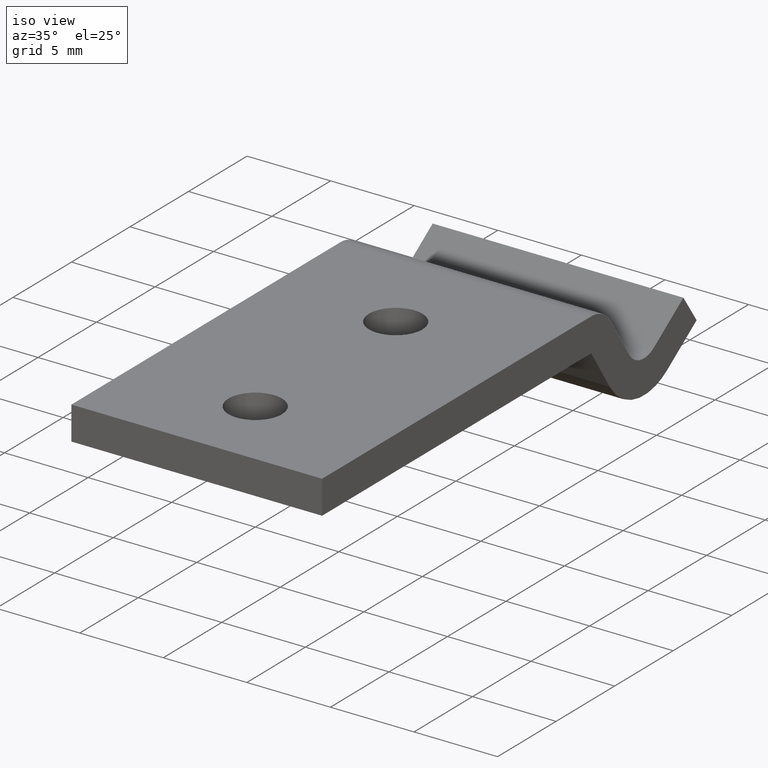
[diagram: clean part render]
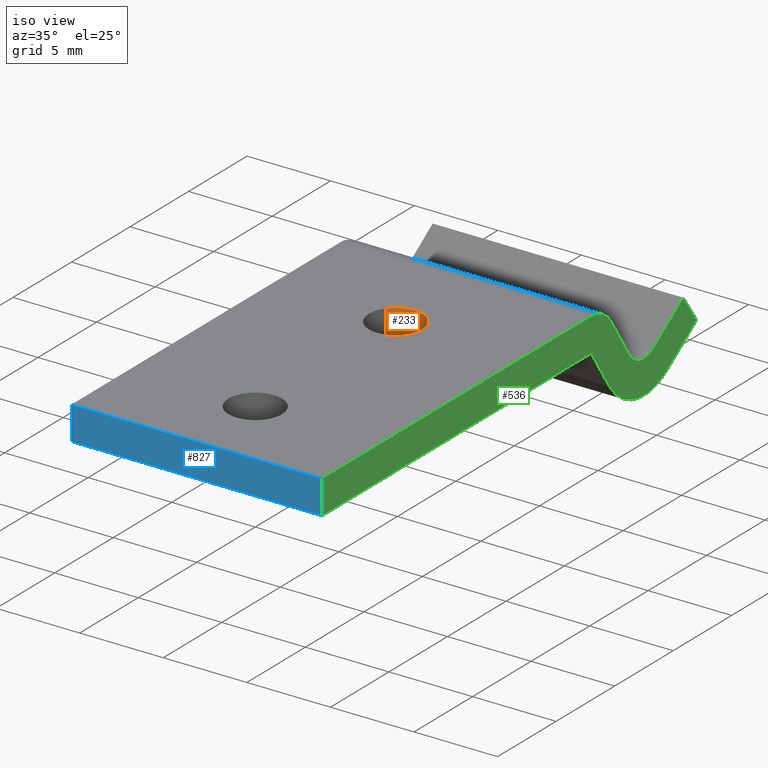
[diagram: same view with three faces highlighted in distinct colors, each labeled with its STEP entity id]
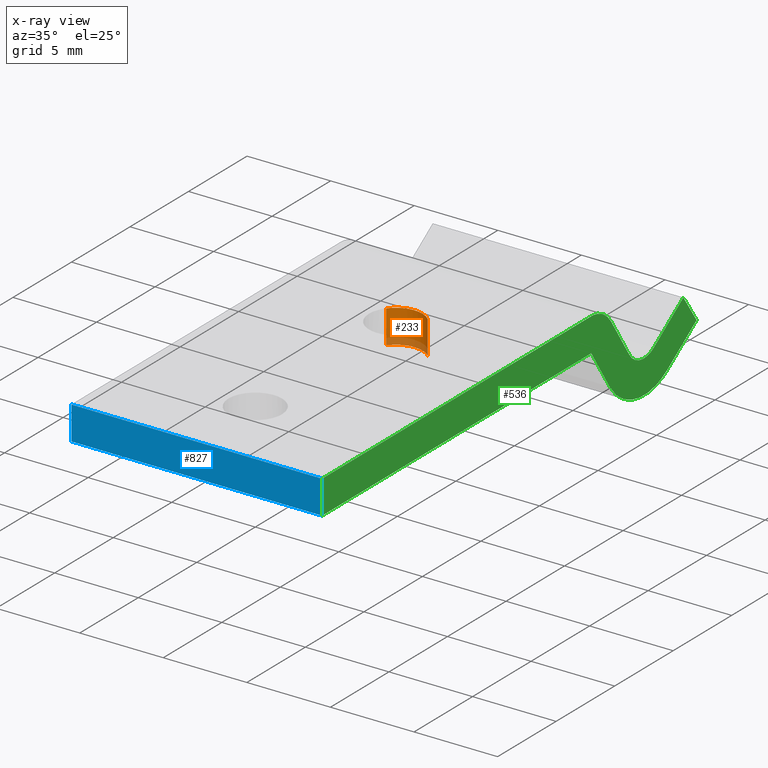
[diagram: x-ray of the same camera — body ghosted, the three highlighted faces saturated]
A machine part, iso view with three faces highlighted in distinct colors.
The next image is the same camera in x-ray (body ghosted, the three faces saturated) — at least one of them is partly hidden behind the body in this view.
Their STEP definitions:

[orange] entity #233 — the highlighted face is a freeform B-spline surface patch.
#66=CARTESIAN_POINT('',(-1.263056931649046,17.982184904898428,7.661973E-014));
#67=VERTEX_POINT('',#66);
#100=CARTESIAN_POINT('',(1.121454714115848,18.141200825528671,1.040834E-016));
#101=VERTEX_POINT('',#100);
#115=CARTESIAN_POINT('',(1.121454701941932,18.141200837491940,-1.999999999999998));
#116=VERTEX_POINT('',#115);
#117=CARTESIAN_POINT('',(1.121454701941932,18.141200837491940,-1.999999999999998));
#118=CARTESIAN_POINT('',(1.121454714115848,18.141200825528671,1.040834E-016));
#119=QUASI_UNIFORM_CURVE('',1,(#117,#118),.UNSPECIFIED.,.F.,.U.);
#120=EDGE_CURVE('',#116,#101,#119,.T.);
#139=CARTESIAN_POINT('',(-1.263056544785496,17.982185402392709,-2.0));
#140=VERTEX_POINT('',#139);
#156=CARTESIAN_POINT('',(-1.263056544785496,17.982185402392709,-2.0));
#157=CARTESIAN_POINT('',(-1.263056931649046,17.982184904898428,7.661973E-014));
#158=QUASI_UNIFORM_CURVE('',1,(#156,#157),.UNSPECIFIED.,.F.,.U.);
#159=EDGE_CURVE('',#140,#67,#158,.T.);
#164=CARTESIAN_POINT('',(1.130142307215026,18.132663551567063,-2.049999999999999));
#165=CARTESIAN_POINT('',(1.125805424281291,18.136925394556503,-2.049999999999999));
#166=CARTESIAN_POINT('',(-0.019745895766931,19.262655541526449,-2.050000000000001));
#167=CARTESIAN_POINT('',(-1.141200718646692,18.121454822879759,-2.050000000000000));
#168=CARTESIAN_POINT('',(-1.206161919057814,18.055349825085063,-2.050000000000000));
#169=CARTESIAN_POINT('',(-1.266981190131970,17.977138450992641,-2.050000000000000));
#170=CARTESIAN_POINT('',(-1.270917439241550,17.972076577573358,-2.049999999999999));
#171=CARTESIAN_POINT('',(1.130142307215026,18.132663551567063,0.051250000000000));
#172=CARTESIAN_POINT('',(1.125805424281291,18.136925394556503,0.051250000000000));
#173=CARTESIAN_POINT('',(-0.019745895766931,19.262655541526449,0.051250000000000));
#174=CARTESIAN_POINT('',(-1.141200718646692,18.121454822879759,0.051250000000000));
#175=CARTESIAN_POINT('',(-1.206161919057814,18.055349825085063,0.051250000000000));
#176=CARTESIAN_POINT('',(-1.266981190131970,17.977138450992641,0.051250000000000));
#177=CARTESIAN_POINT('',(-1.270917439241550,17.972076577573358,0.051250000000000));
#185=(BOUNDED_SURFACE()B_SPLINE_SURFACE(2,1,((#164,#171),(#165,#172),(#166,#173),(#167,#174),(#168,#175),(#169,#176),(#170,#177)),.UNSPECIFIED.,.F.,.F.,.U.)B_SPLINE_SURFACE_WITH_KNOTS((3,1,2,1,3),(2,2),(0.0,0.014315050516549,2.665281849704356,2.877359193639381,2.891676356386252),(0.0,2.101250000000000),.UNSPECIFIED.)GEOMETRIC_REPRESENTATION_ITEM()RATIONAL_B_SPLINE_SURFACE(((1.003163209154150,1.003163209154150),(1.001581604577075,1.001581604577075),(0.707106781186548,0.707106781186548),(1.0,1.0),(0.976568542494924,0.976568542494924),(0.955557374314541,0.955557374314541),(0.954228630438423,0.954228630438423)))REPRESENTATION_ITEM('')SURFACE());
#186=CARTESIAN_POINT('',(1.121454714115848,18.141200825528667,1.040834E-016));
#187=CARTESIAN_POINT('',(0.654577104271281,18.600000000000005,0.0));
#188=CARTESIAN_POINT('',(-1.223941E-015,18.600000000000001,0.0));
#189=CARTESIAN_POINT('',(-0.782628341915235,18.599999999999998,0.0));
#190=CARTESIAN_POINT('',(-1.263056931649046,17.982184904898428,7.661973E-014));
#198=(BOUNDED_CURVE()B_SPLINE_CURVE(2,(#186,#187,#188,#189,#190),.UNSPECIFIED.,.F.,.U.)B_SPLINE_CURVE_WITH_KNOTS((3,2,3),(0.626316786352934,0.750000000000000,0.893802338418216),.UNSPECIFIED.)CURVE()GEOMETRIC_REPRESENTATION_ITEM()RATIONAL_B_SPLINE_CURVE((0.853569641961433,0.855096101766876,1.0,0.831525080911149,0.856866860460671))REPRESENTATION_ITEM(''));
#199=EDGE_CURVE('',#101,#67,#198,.T.);
#200=ORIENTED_EDGE('',*,*,#199,.T.);
#201=ORIENTED_EDGE('',*,*,#159,.F.);
#202=CARTESIAN_POINT('',(-1.223941E-015,18.600000000000001,-2.0));
#203=VERTEX_POINT('',#202);
#204=CARTESIAN_POINT('',(-1.263056544785496,17.982185402392712,-2.000000000000000));
#205=CARTESIAN_POINT('',(-0.782627951418396,18.599999999999994,-2.0));
#206=CARTESIAN_POINT('',(-1.223941E-015,18.600000000000001,-2.0));
#214=(BOUNDED_CURVE()B_SPLINE_CURVE(2,(#204,#205,#206),.UNSPECIFIED.,.F.,.U.)B_SPLINE_CURVE_WITH_KNOTS((3,3),(0.856197721244537,1.0),.UNSPECIFIED.)CURVE()GEOMETRIC_REPRESENTATION_ITEM()RATIONAL_B_SPLINE_CURVE((0.856866839432390,0.831525150810412,1.0))REPRESENTATION_ITEM(''));
#215=EDGE_CURVE('',#140,#203,#214,.T.);
#216=ORIENTED_EDGE('',*,*,#215,.T.);
#217=CARTESIAN_POINT('',(-1.223941E-015,18.600000000000001,-2.0));
#218=CARTESIAN_POINT('',(0.654577084346330,18.599999999999998,-2.000000000000000));
#219=CARTESIAN_POINT('',(1.121454701941932,18.141200837491940,-1.999999999999997));
#227=(BOUNDED_CURVE()B_SPLINE_CURVE(2,(#217,#218,#219),.UNSPECIFIED.,.F.,.U.)B_SPLINE_CURVE_WITH_KNOTS((3,3),(0.0,0.123683210427761),.UNSPECIFIED.)CURVE()GEOMETRIC_REPRESENTATION_ITEM()RATIONAL_B_SPLINE_CURVE((1.0,0.855096105538526,0.853569642040897))REPRESENTATION_ITEM(''));
#228=EDGE_CURVE('',#203,#116,#227,.T.);
#229=ORIENTED_EDGE('',*,*,#228,.T.);
#230=ORIENTED_EDGE('',*,*,#120,.T.);
#231=EDGE_LOOP('',(#200,#201,#216,#229,#230));
#232=FACE_OUTER_BOUND('',#231,.T.);
#233=ADVANCED_FACE('',(#232),#185,.F.);

[blue] entity #827 — the highlighted face is a freeform B-spline surface patch.
#446=CARTESIAN_POINT('',(7.500000000000000,0.0,0.0));
#447=VERTEX_POINT('',#446);
#453=CARTESIAN_POINT('',(7.500000000000000,0.0,-2.0));
#454=VERTEX_POINT('',#453);
#455=CARTESIAN_POINT('',(7.500000000000000,0.0,0.0));
#456=CARTESIAN_POINT('',(7.500000000000000,0.0,-2.0));
#457=QUASI_UNIFORM_CURVE('',1,(#455,#456),.UNSPECIFIED.,.F.,.U.);
#458=EDGE_CURVE('',#447,#454,#457,.T.);
#628=CARTESIAN_POINT('',(-7.500000000000000,0.0,-2.0));
#629=VERTEX_POINT('',#628);
#635=CARTESIAN_POINT('',(-7.500000000000000,0.0,0.0));
#636=VERTEX_POINT('',#635);
#637=CARTESIAN_POINT('',(-7.500000000000000,0.0,0.0));
#638=CARTESIAN_POINT('',(-7.500000000000000,0.0,-2.0));
#639=QUASI_UNIFORM_CURVE('',1,(#637,#638),.UNSPECIFIED.,.F.,.U.);
#640=EDGE_CURVE('',#636,#629,#639,.T.);
#790=CARTESIAN_POINT('',(-7.500000000000000,0.0,-2.0));
#791=CARTESIAN_POINT('',(7.500000000000000,0.0,-2.0));
#792=QUASI_UNIFORM_CURVE('',1,(#790,#791),.UNSPECIFIED.,.F.,.U.);
#793=EDGE_CURVE('',#629,#454,#792,.T.);
#812=CARTESIAN_POINT('',(-8.249249970927089,0.0,0.099899996123612));
#813=CARTESIAN_POINT('',(-8.249249970927089,0.0,-2.099900049767792));
#814=CARTESIAN_POINT('',(8.249250373258443,0.0,0.099899996123612));
#815=CARTESIAN_POINT('',(8.249250373258443,0.0,-2.099900049767792));
#816=B_SPLINE_SURFACE_WITH_KNOTS('',1,1,((#812,#814),(#813,#815)),.UNSPECIFIED.,.F.,.F.,.U.,(2,2),(2,2),(0.0,2.199800045891404),(0.0,16.498500344185530),.UNSPECIFIED.);
#817=ORIENTED_EDGE('',*,*,#458,.F.);
#818=CARTESIAN_POINT('',(-7.500000000000000,0.0,0.0));
#819=CARTESIAN_POINT('',(7.500000000000000,0.0,0.0));
#820=QUASI_UNIFORM_CURVE('',1,(#818,#819),.UNSPECIFIED.,.F.,.U.);
#821=EDGE_CURVE('',#636,#447,#820,.T.);
#822=ORIENTED_EDGE('',*,*,#821,.F.);
#823=ORIENTED_EDGE('',*,*,#640,.T.);
#824=ORIENTED_EDGE('',*,*,#793,.T.);
#825=EDGE_LOOP('',(#817,#822,#823,#824));
#826=FACE_OUTER_BOUND('',#825,.T.);
#827=ADVANCED_FACE('',(#826),#816,.T.);

[green] entity #536 — the highlighted face is a freeform B-spline surface patch.
#424=CARTESIAN_POINT('',(7.500000000000000,-1.598426787483293,0.299671728121053));
#425=CARTESIAN_POINT('',(7.500000000000000,33.598965173463142,0.299671728121053));
#426=CARTESIAN_POINT('',(7.500000000000000,-1.598426787483293,-6.299106118138382));
#427=CARTESIAN_POINT('',(7.500000000000000,33.598965173463142,-6.299106118138382));
#428=B_SPLINE_SURFACE_WITH_KNOTS('',1,1,((#424,#426),(#425,#427)),.UNSPECIFIED.,.F.,.F.,.U.,(2,2),(2,2),(0.0,35.197391960946433),(0.0,6.598777846259435),.UNSPECIFIED.);
#429=CARTESIAN_POINT('',(7.500000000000000,24.677000032489701,-0.910000049971348));
#430=VERTEX_POINT('',#429);
#431=CARTESIAN_POINT('',(7.500000000000000,23.0,1.408297E-015));
#432=VERTEX_POINT('',#431);
#433=CARTESIAN_POINT('',(7.500000000000000,24.677000032489669,-0.910000049971368));
#434=CARTESIAN_POINT('',(7.500000000000000,24.085376340791562,-0.000042243061587));
#435=CARTESIAN_POINT('',(7.500000000000000,23.0,-1.908196E-014));
#443=(BOUNDED_CURVE()B_SPLINE_CURVE(2,(#433,#434,#435),.UNSPECIFIED.,.F.,.U.)CURVE()GEOMETRIC_REPRESENTATION_ITEM()QUASI_UNIFORM_CURVE()RATIONAL_B_SPLINE_CURVE((1.0,0.878953597617270,1.0))REPRESENTATION_ITEM(''));
#444=EDGE_CURVE('',#430,#432,#443,.T.);
#445=ORIENTED_EDGE('',*,*,#444,.T.);
#446=CARTESIAN_POINT('',(7.500000000000000,0.0,0.0));
#447=VERTEX_POINT('',#446);
#448=CARTESIAN_POINT('',(7.500000000000000,23.0,1.408297E-015));
#449=CARTESIAN_POINT('',(7.500000000000000,0.0,0.0));
#450=QUASI_UNIFORM_CURVE('',1,(#448,#449),.UNSPECIFIED.,.F.,.U.);
#451=EDGE_CURVE('',#432,#447,#450,.T.);
#452=ORIENTED_EDGE('',*,*,#451,.T.);
#453=CARTESIAN_POINT('',(7.500000000000000,0.0,-2.0));
#454=VERTEX_POINT('',#453);
#455=CARTESIAN_POINT('',(7.500000000000000,0.0,0.0));
#456=CARTESIAN_POINT('',(7.500000000000000,0.0,-2.0));
#457=QUASI_UNIFORM_CURVE('',1,(#455,#456),.UNSPECIFIED.,.F.,.U.);
#458=EDGE_CURVE('',#447,#454,#457,.T.);
#459=ORIENTED_EDGE('',*,*,#458,.T.);
#460=CARTESIAN_POINT('',(7.500000000000000,23.0,-2.0));
#461=VERTEX_POINT('',#460);
#462=CARTESIAN_POINT('',(7.500000000000000,0.0,-2.0));
#463=CARTESIAN_POINT('',(7.500000000000000,23.0,-2.0));
#464=QUASI_UNIFORM_CURVE('',1,(#462,#463),.UNSPECIFIED.,.F.,.U.);
#465=EDGE_CURVE('',#454,#461,#464,.T.);
#466=ORIENTED_EDGE('',*,*,#465,.T.);
#467=CARTESIAN_POINT('',(7.500000000000000,24.564715524025651,-4.406024892626915));
#468=VERTEX_POINT('',#467);
#469=CARTESIAN_POINT('',(7.500000000000000,23.0,-2.0));
#470=CARTESIAN_POINT('',(7.500000000000000,24.564715524025651,-4.406024892626915));
#471=QUASI_UNIFORM_CURVE('',1,(#469,#470),.UNSPECIFIED.,.F.,.U.);
#472=EDGE_CURVE('',#461,#468,#471,.T.);
#473=ORIENTED_EDGE('',*,*,#472,.T.);
#474=CARTESIAN_POINT('',(7.500000000000000,29.487200000000001,-5.381399999999999));
#475=VERTEX_POINT('',#474);
#476=CARTESIAN_POINT('',(7.500000000000000,24.564715524025662,-4.406024892626909));
#477=CARTESIAN_POINT('',(7.500000000000000,25.369844758090924,-5.645876763820174));
#478=CARTESIAN_POINT('',(7.500000000000000,26.819983102846631,-5.933217201484426));
#479=CARTESIAN_POINT('',(7.500000000000000,28.270121447602349,-6.220557639148679));
#480=CARTESIAN_POINT('',(7.500000000000000,29.487200000000009,-5.381400000000010));
#488=(BOUNDED_CURVE()B_SPLINE_CURVE(2,(#476,#477,#478,#479,#480),.UNSPECIFIED.,.F.,.U.)B_SPLINE_CURVE_WITH_KNOTS((3,2,3),(0.0,0.500000000000000,1.0),.UNSPECIFIED.)CURVE()GEOMETRIC_REPRESENTATION_ITEM()RATIONAL_B_SPLINE_CURVE((1.0,0.921207497093557,1.0,0.921207497093557,1.0))REPRESENTATION_ITEM(''));
#489=EDGE_CURVE('',#468,#475,#488,.T.);
#490=ORIENTED_EDGE('',*,*,#489,.T.);
#491=CARTESIAN_POINT('',(7.500000000000000,32.000537527658551,-3.648490992657125));
#492=VERTEX_POINT('',#491);
#493=CARTESIAN_POINT('',(7.500000000000000,29.487200000000001,-5.381399999999999));
#494=CARTESIAN_POINT('',(7.500000000000000,32.000537527658551,-3.648490992657125));
#495=QUASI_UNIFORM_CURVE('',1,(#493,#494),.UNSPECIFIED.,.F.,.U.);
#496=EDGE_CURVE('',#475,#492,#495,.T.);
#497=ORIENTED_EDGE('',*,*,#496,.T.);
#498=CARTESIAN_POINT('',(7.500000000000000,30.867300000000000,-2.0));
#499=VERTEX_POINT('',#498);
#500=CARTESIAN_POINT('',(7.500000000000000,32.000537527658551,-3.648490992657125));
#501=CARTESIAN_POINT('',(7.500000000000000,30.867300000000000,-2.0));
#502=QUASI_UNIFORM_CURVE('',1,(#500,#501),.UNSPECIFIED.,.F.,.U.);
#503=EDGE_CURVE('',#492,#499,#502,.T.);
#504=ORIENTED_EDGE('',*,*,#503,.T.);
#505=CARTESIAN_POINT('',(7.500000000000000,28.351751023327949,-3.735033780372080));
#506=VERTEX_POINT('',#505);
#507=CARTESIAN_POINT('',(7.500000000000000,30.867300000000000,-2.0));
#508=CARTESIAN_POINT('',(7.500000000000000,28.351751023327949,-3.735033780372080));
#509=QUASI_UNIFORM_CURVE('',1,(#507,#508),.UNSPECIFIED.,.F.,.U.);
#510=EDGE_CURVE('',#499,#506,#509,.T.);
#511=ORIENTED_EDGE('',*,*,#510,.T.);
#512=CARTESIAN_POINT('',(7.500000000000000,26.242524275549751,-3.317883530610490));
#513=VERTEX_POINT('',#512);
#514=CARTESIAN_POINT('',(7.500000000000000,26.242524275549769,-3.317883530610480));
#515=CARTESIAN_POINT('',(7.500000000000001,26.587754753539777,-3.848871644432641));
#516=CARTESIAN_POINT('',(7.500000000000000,27.209070253143910,-3.971751707523837));
#517=CARTESIAN_POINT('',(7.500000000000001,27.830385752748043,-4.094631770615034));
#518=CARTESIAN_POINT('',(7.500000000000000,28.351751023327960,-3.735033780372091));
#526=(BOUNDED_CURVE()B_SPLINE_CURVE(2,(#514,#515,#516,#517,#518),.UNSPECIFIED.,.F.,.U.)B_SPLINE_CURVE_WITH_KNOTS((3,2,3),(0.0,0.500000000000000,1.0),.UNSPECIFIED.)CURVE()GEOMETRIC_REPRESENTATION_ITEM()RATIONAL_B_SPLINE_CURVE((1.0,0.921245852118904,1.0,0.921245852118904,1.0))REPRESENTATION_ITEM(''));
#527=EDGE_CURVE('',#513,#506,#526,.T.);
#528=ORIENTED_EDGE('',*,*,#527,.F.);
#529=CARTESIAN_POINT('',(7.500000000000000,26.242524275549751,-3.317883530610490));
#530=CARTESIAN_POINT('',(7.500000000000000,24.677000032489701,-0.910000049971348));
#531=QUASI_UNIFORM_CURVE('',1,(#529,#530),.UNSPECIFIED.,.F.,.U.);
#532=EDGE_CURVE('',#513,#430,#531,.T.);
#533=ORIENTED_EDGE('',*,*,#532,.T.);
#534=EDGE_LOOP('',(#445,#452,#459,#466,#473,#490,#497,#504,#511,#528,#533));
#535=FACE_OUTER_BOUND('',#534,.T.);
#536=ADVANCED_FACE('',(#535),#428,.F.);